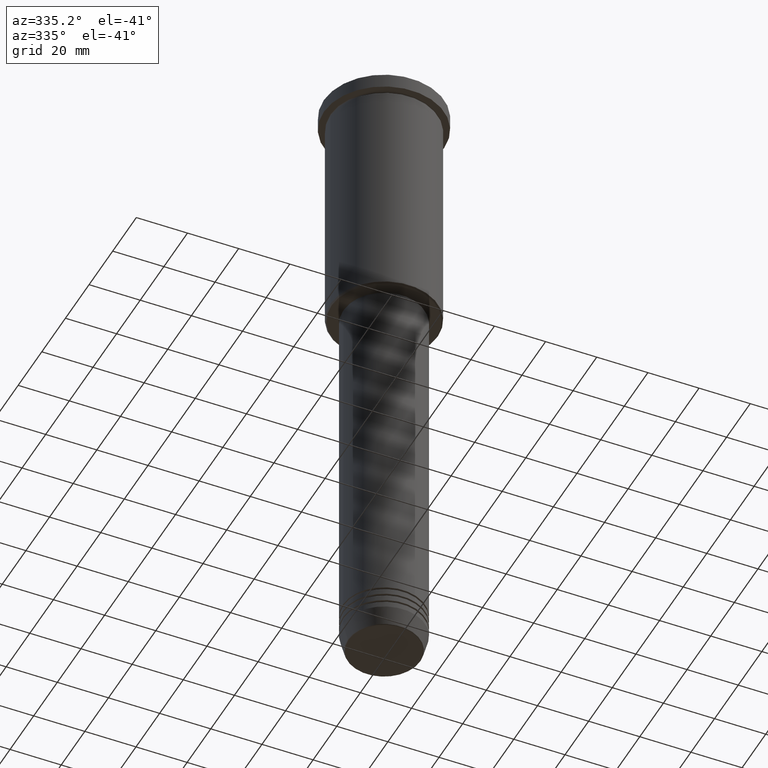
[diagram: clean part render]
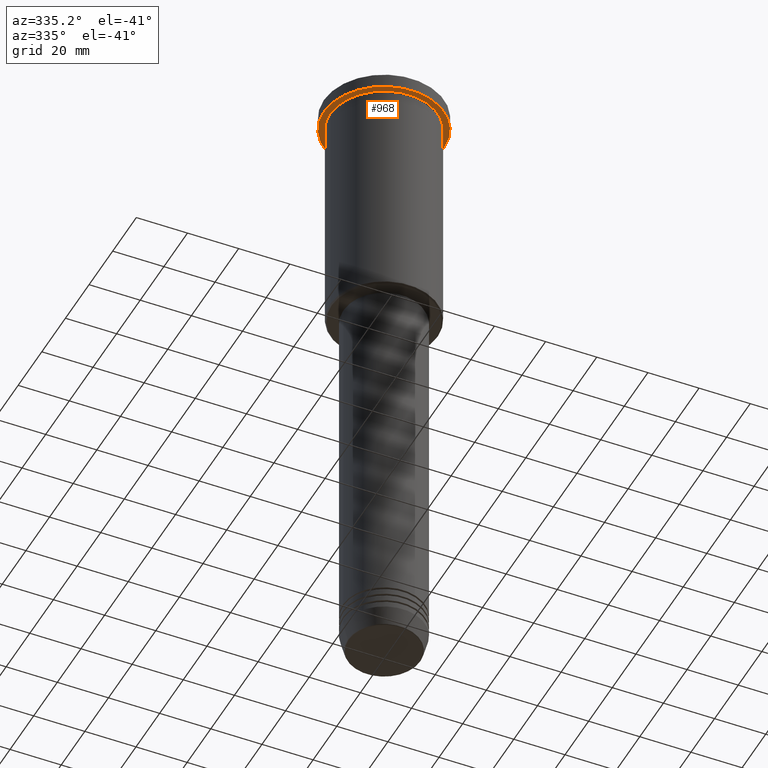
[diagram: same view with one face highlighted and labeled with its STEP entity id]
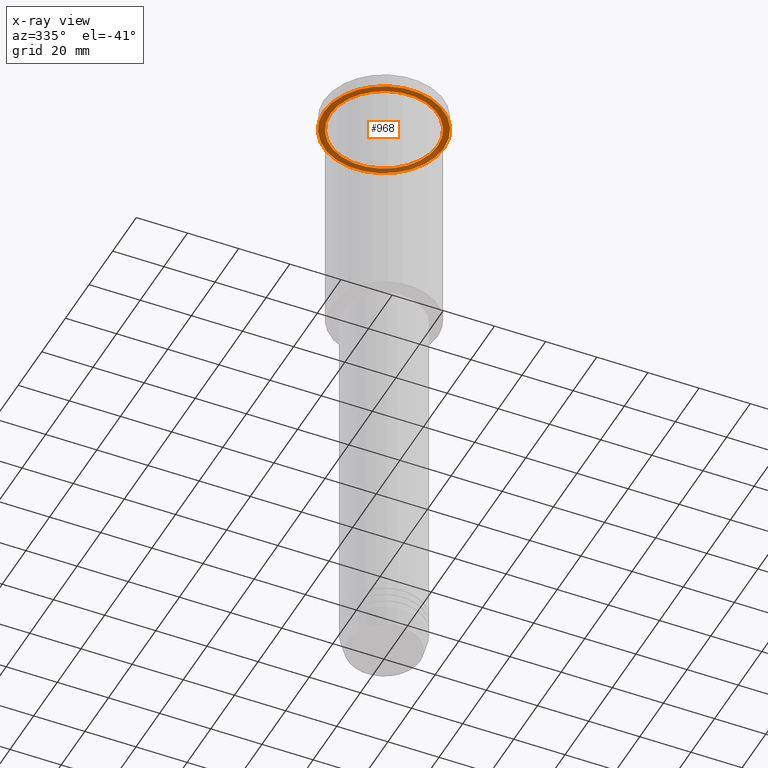
[diagram: x-ray of the same camera — body ghosted, the highlighted face saturated]
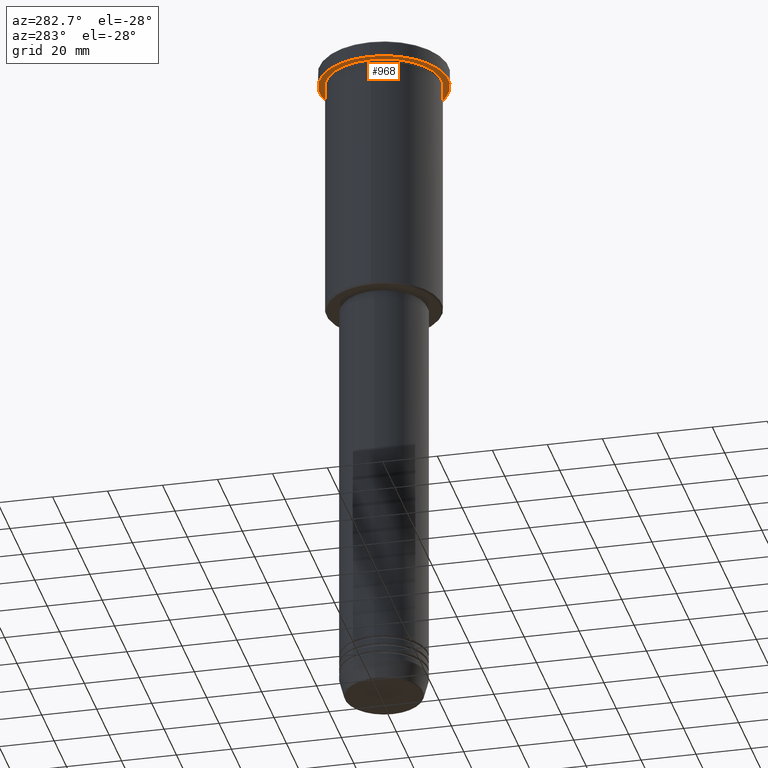
[diagram: same view with one face highlighted and labeled with its STEP entity id]
A machine part, auxiliary view. The second image highlights one B-rep face of the part: STEP entity #968.
The next image is the same camera in x-ray: the body ghosted, the highlighted face saturated — about 34% of this face is hidden behind the body in this view.
A second angle (auxiliary view) of the same face is appended — the face is thin or edge-on in the first view.
In plain terms, the highlighted planar face has unit normal (0, 0, -1).
Its self-contained STEP definition (entity closure, byte-faithful):
#8 = FACE_BOUND ( 'NONE', #45, .T. ) ;
#14 = AXIS2_PLACEMENT_3D ( 'NONE', #211, #199, #654 ) ;
#30 = CARTESIAN_POINT ( 'NONE',  ( 0.000000000000000000, 0.000000000000000000, -5.999999999999994671 ) ) ;
#31 = AXIS2_PLACEMENT_3D ( 'NONE', #641, #847, #1036 ) ;
#36 = AXIS2_PLACEMENT_3D ( 'NONE', #30, #306, #386 ) ;
#45 = EDGE_LOOP ( 'NONE', ( #193, #104 ) ) ;
#104 = ORIENTED_EDGE ( 'NONE', *, *, #1025, .T. ) ;
#122 = PLANE ( 'NONE',  #14 ) ;
#149 = CARTESIAN_POINT ( 'NONE',  ( 0.000000000000000000, 0.000000000000000000, -5.999999999999994671 ) ) ;
#167 = AXIS2_PLACEMENT_3D ( 'NONE', #612, #627, #1097 ) ;
#189 = CIRCLE ( 'NONE', #914, 23.50000000000000000 ) ;
#190 = EDGE_CURVE ( 'NONE', #864, #832, #279, .T. ) ;
#193 = ORIENTED_EDGE ( 'NONE', *, *, #190, .T. ) ;
#199 = DIRECTION ( 'NONE',  ( 0.000000000000000000, 0.000000000000000000, -1.000000000000000000 ) ) ;
#211 = CARTESIAN_POINT ( 'NONE',  ( 0.000000000000000000, 23.50000000000000000, -5.999999999999994671 ) ) ;
#219 = DIRECTION ( 'NONE',  ( -0.000000000000000000, -0.000000000000000000, 1.000000000000000000 ) ) ;
#279 = CIRCLE ( 'NONE', #31, 21.00000000000000000 ) ;
#306 = DIRECTION ( 'NONE',  ( -0.000000000000000000, -0.000000000000000000, 1.000000000000000000 ) ) ;
#369 = CARTESIAN_POINT ( 'NONE',  ( -21.00000000000000000, 0.000000000000000000, -5.999999999999994671 ) ) ;
#386 = DIRECTION ( 'NONE',  ( -1.000000000000000000, 0.000000000000000000, 0.000000000000000000 ) ) ;
#442 = CARTESIAN_POINT ( 'NONE',  ( 21.00000000000000000, 2.571758278209441661E-15, -5.999999999999994671 ) ) ;
#444 = EDGE_LOOP ( 'NONE', ( #708, #803 ) ) ;
#471 = FACE_OUTER_BOUND ( 'NONE', #444, .T. ) ;
#533 = VERTEX_POINT ( 'NONE', #827 ) ;
#606 = CARTESIAN_POINT ( 'NONE',  ( 23.50000000000000000, 0.000000000000000000, -5.999999999999994671 ) ) ;
#612 = CARTESIAN_POINT ( 'NONE',  ( 0.000000000000000000, 0.000000000000000000, -5.999999999999994671 ) ) ;
#627 = DIRECTION ( 'NONE',  ( -0.000000000000000000, -0.000000000000000000, 1.000000000000000000 ) ) ;
#641 = CARTESIAN_POINT ( 'NONE',  ( 0.000000000000000000, 0.000000000000000000, -5.999999999999994671 ) ) ;
#654 = DIRECTION ( 'NONE',  ( -1.000000000000000000, 0.000000000000000000, -0.000000000000000000 ) ) ;
#676 = CIRCLE ( 'NONE', #167, 23.50000000000000000 ) ;
#690 = DIRECTION ( 'NONE',  ( 1.000000000000000000, 0.000000000000000000, 0.000000000000000000 ) ) ;
#708 = ORIENTED_EDGE ( 'NONE', *, *, #1170, .F. ) ;
#803 = ORIENTED_EDGE ( 'NONE', *, *, #834, .F. ) ;
#827 = CARTESIAN_POINT ( 'NONE',  ( -23.50000000000000000, 2.877919977996280320E-15, -5.999999999999994671 ) ) ;
#832 = VERTEX_POINT ( 'NONE', #442 ) ;
#834 = EDGE_CURVE ( 'NONE', #533, #1132, #676, .T. ) ;
#847 = DIRECTION ( 'NONE',  ( -0.000000000000000000, -0.000000000000000000, 1.000000000000000000 ) ) ;
#864 = VERTEX_POINT ( 'NONE', #369 ) ;
#914 = AXIS2_PLACEMENT_3D ( 'NONE', #149, #219, #690 ) ;
#968 = ADVANCED_FACE ( 'NONE', ( #8, #471 ), #122, .T. ) ;
#1025 = EDGE_CURVE ( 'NONE', #832, #864, #1159, .T. ) ;
#1036 = DIRECTION ( 'NONE',  ( -1.000000000000000000, 0.000000000000000000, 0.000000000000000000 ) ) ;
#1097 = DIRECTION ( 'NONE',  ( 1.000000000000000000, 0.000000000000000000, 0.000000000000000000 ) ) ;
#1132 = VERTEX_POINT ( 'NONE', #606 ) ;
#1159 = CIRCLE ( 'NONE', #36, 21.00000000000000000 ) ;
#1170 = EDGE_CURVE ( 'NONE', #1132, #533, #189, .T. ) ;